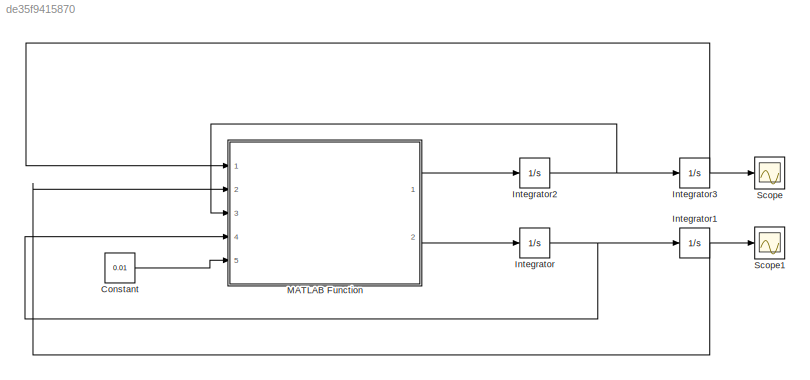
MODEL slx_de35f9415870
KIND model
CONFIG AbsTol = auto
CONFIG EnableMultiTasking = off
CONFIG FixedStep = auto
CONFIG MaxStep = auto
CONFIG MinStep = auto
CONFIG PreLoadFcn = LoadFunction
CONFIG RelTol = 1e-3
CONFIG SampleTimeConstraint = Unconstrained
CONFIG Solver = VariableStepAuto
CONFIG SolverName = VariableStepAuto
CONFIG StartFcn = LoadFunction
CONFIG StartTime = 0.0
CONFIG StopTime = 10
BLOCK [Constant] Constant
  Value = 0.01
BLOCK [Integrator] Integrator
  Ports = [1, 1]
BLOCK [Integrator] Integrator1
  Ports = [1, 1]
BLOCK [Integrator] Integrator2
  Ports = [1, 1]
BLOCK [Integrator] Integrator3
  Ports = [1, 1]
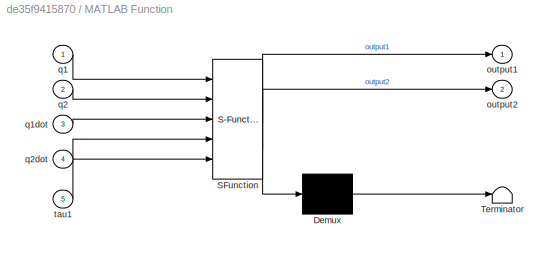
BLOCK [SubSystem] MATLAB Function
  ErrorFcn = Stateflow.Translate.translate
  PermitHierarchicalResolution = ExplicitOnly
  Ports = [5, 2]
  RequestExecContextInheritance = off
  SFBlockType = MATLAB Function
  TreatAsAtomicUnit = on
BLOCK [Demux] MATLAB Function/ Demux 
  Outputs = 1
  Ports = [1, 1]
BLOCK [S-Function] MATLAB Function/ SFunction 
  EnableBusSupport = on
  FunctionName = sf_sfun
  PortCounts = [5 3]
  Ports = [5, 3]
  SFcnIsStateOwnerBlock = off
  SFunctionDeploymentMode = off
  Tag = Stateflow S-Function NonLinearSimulation 2
BLOCK [Terminator] MATLAB Function/ Terminator 
BLOCK [Outport] MATLAB Function/output1
  IconDisplay = Port number
BLOCK [Outport] MATLAB Function/output2
  IconDisplay = Port number
  Port = 2
BLOCK [Inport] MATLAB Function/q1
  IconDisplay = Port number
BLOCK [Inport] MATLAB Function/q1dot
  IconDisplay = Port number
  Port = 3
BLOCK [Inport] MATLAB Function/q2
  IconDisplay = Port number
  Port = 2
BLOCK [Inport] MATLAB Function/q2dot
  IconDisplay = Port number
  Port = 4
BLOCK [Inport] MATLAB Function/tau1
  IconDisplay = Port number
  Port = 5
BLOCK [Scope] Scope
  Floating = off
  NumInputPorts = 1
  Ports = [1]
  ScopeSpecificationString = Simulink.scopes.TimeScopeBlockCfg('CurrentConfiguration', extmgr.ConfigurationSet(extmgr.Configuration('Core','General UI',true),extmgr.Configuration('Core','Source UI',true),extmgr.Configuration('Sources','WiredSimulink',true),extmgr.Configuration('Visuals','Time Domain',true,'SerializedDisplays',{struct('MinYLimReal','-3122.96618','MaxYLimReal','346.99624','YLabelReal','','MinYLimMag','  0.00000...<+1406ch>
BLOCK [Scope] Scope1
  Floating = off
  NumInputPorts = 1
  Ports = [1]
  ScopeSpecificationString = Simulink.scopes.TimeScopeBlockCfg('CurrentConfiguration', extmgr.ConfigurationSet(extmgr.Configuration('Core','General UI',true),extmgr.Configuration('Core','Source UI',true),extmgr.Configuration('Sources','WiredSimulink',true,'DataLoggingVariableName','ScopeData1'),extmgr.Configuration('Visuals','Time Domain',true,'SerializedDisplays',{struct('MinYLimReal','-56.06291','MaxYLimReal','504.56622','Y...<+1380ch>
LINE Constant:1 -> MATLAB Function:5
NET Integrator1:1 -> MATLAB Function:2, Scope1:1
NET Integrator2:1 -> Integrator3:1, MATLAB Function:3
NET Integrator3:1 -> MATLAB Function:1, Scope:1
NET Integrator:1 -> Integrator1:1, MATLAB Function:4
LINE MATLAB Function:1 -> Integrator2:1
LINE MATLAB Function:2 -> Integrator:1
note: NET lines group one-source signal fan-out (src -> all destinations, sorted); 1:1 wires keep LINE
CHART MATLAB Function states=1 transitions=1
  STATE_LABEL 'eML_blk_kernel()'
  STATE_LABEL 'SCRIPT:\nfunction [output1, output2]= NonLinearSimulation(q1, q2 ,q1dot, q2dot,tau1)\noutput1 = -(tau1 - (3*q1dot)/1000 - (147*cos(q1 + q2))/12500 - (441*cos(q1))/12500 + (3*q2dot^2*sin(q1))/31250 + (15625*((3*cos(q2))/31250 + 32/625)*((3*sin(q1)*q1dot^2)/31250 + (3*q2dot)/5000 + (147*cos(q1 + q2))/12500))/782 + (3*q1dot*q2dot*sin(q1))/15625)/(((3*cos(q2))/15625 + 1567/15625)*((15625*((3*cos(q2))/31...<+463ch>'
